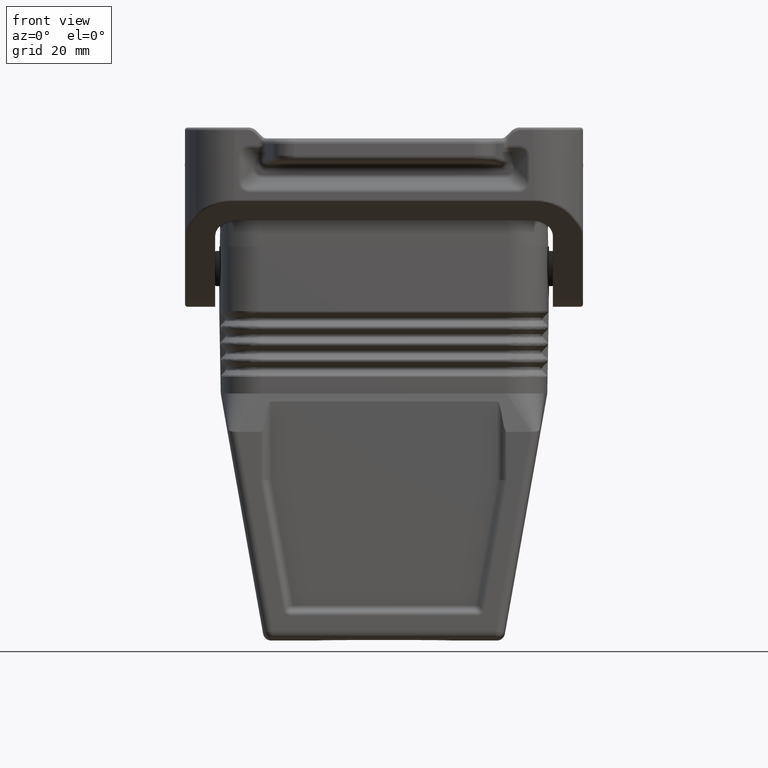
[diagram: clean part render]
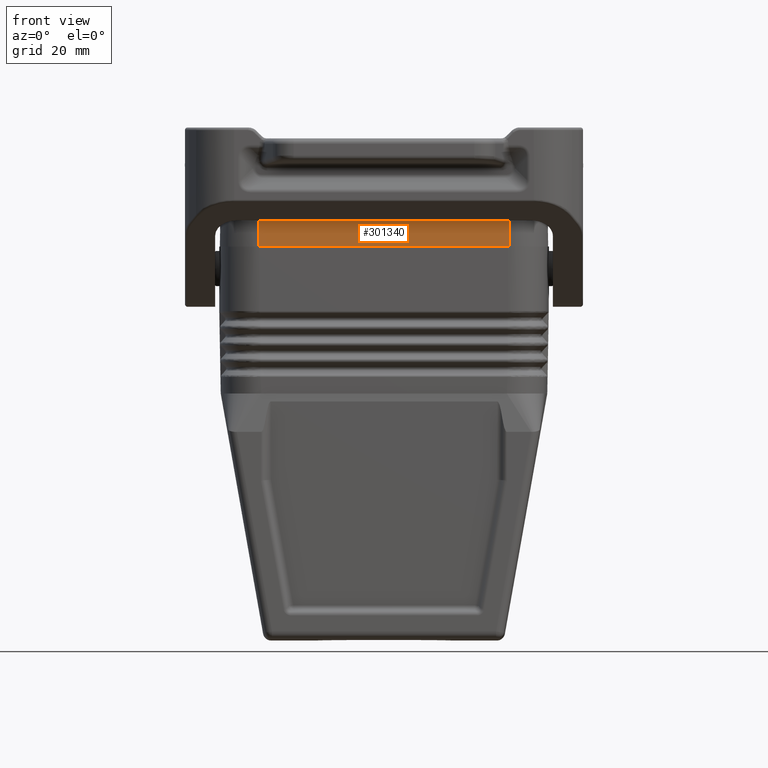
[diagram: same view with one face highlighted and labeled with its STEP entity id]
A machine part, front view. The second image highlights one B-rep face of the part: STEP entity #301340.
In plain terms, the highlighted planar face has unit normal (-0, 0.9998, -0.0175).
Its self-contained STEP definition (entity closure, byte-faithful):
#42280=CARTESIAN_POINT('',(70.8240779768177,73.2110661339053,0.25));
#42290=VERTEX_POINT('',#42280);
#44430=CARTESIAN_POINT('',(70.7418596144654,73.128847771553,
-4.46028682450606));
#44440=VERTEX_POINT('',#44430);
#44470=CARTESIAN_POINT('',(70.8219455466051,73.2089337036927,
0.127833154939056));
#44480=DIRECTION('',(0.0174497491606827,0.0174497491606825,
0.999695459881888));
#44490=VECTOR('',#44480,1.);
#44500=LINE('',#44470,#44490);
#44510=EDGE_CURVE('',#44440,#42290,#44500,.T.);
#189530=CARTESIAN_POINT('',(70.8240779768177,0.,0.25));
#189540=DIRECTION('',(-3.02797109056784E-18,1.,0.));
#189550=VECTOR('',#189540,1.);
#189560=LINE('',#189530,#189550);
#189570=CARTESIAN_POINT('',(70.8240779768177,27.4089338660947,0.25));
#189580=VERTEX_POINT('',#189570);
#189590=EDGE_CURVE('',#189580,#42290,#189560,.T.);
#301110=CARTESIAN_POINT('',(70.8240779768177,1.56000000000001,
0.250000000000028));
#301120=DIRECTION('',(-0.999847695156391,-3.02750991590444E-18,
0.0174524064372835));
#301130=DIRECTION('',(4.86297310957769E-33,1.,1.73472347597681E-16));
#301140=AXIS2_PLACEMENT_3D('',#301110,#301120,#301130);
#301150=PLANE('',#301140);
#301160=CARTESIAN_POINT('',(70.7418596144654,1.56000000000001,
-4.46028682450612));
#301170=DIRECTION('',(4.86297310957769E-33,1.,1.73472347597681E-16));
#301180=VECTOR('',#301170,1.);
#301190=LINE('',#301160,#301180);
#301200=CARTESIAN_POINT('',(70.7418596144654,27.491152228447,
-4.46028682450611));
#301210=VERTEX_POINT('',#301200);
#301220=EDGE_CURVE('',#301210,#44440,#301190,.T.);
#301230=ORIENTED_EDGE('',*,*,#301220,.T.);
#301240=CARTESIAN_POINT('',(70.8219455466051,27.4110662963074,
0.127833154939049));
#301250=DIRECTION('',(0.0174497491606827,-0.0174497491606829,
0.999695459881888));
#301260=VECTOR('',#301250,1.);
#301270=LINE('',#301240,#301260);
#301280=EDGE_CURVE('',#301210,#189580,#301270,.T.);
#301290=ORIENTED_EDGE('',*,*,#301280,.F.);
#301300=ORIENTED_EDGE('',*,*,#189590,.F.);
#301310=ORIENTED_EDGE('',*,*,#44510,.T.);
#301320=EDGE_LOOP('',(#301310,#301300,#301290,#301230));
#301330=FACE_OUTER_BOUND('',#301320,.T.);
#301340=ADVANCED_FACE('',(#301330),#301150,.F.);